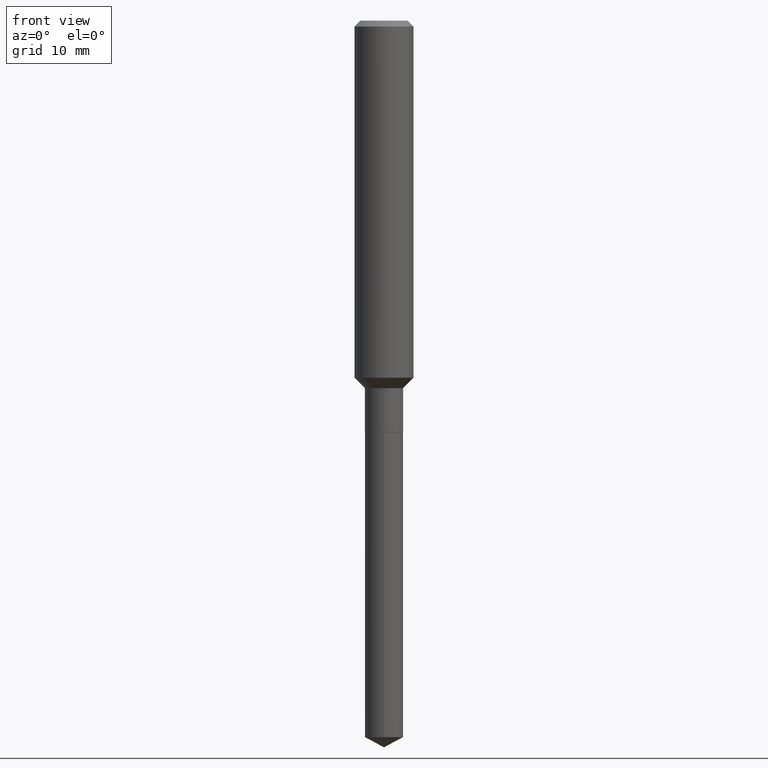
[diagram: clean part render]
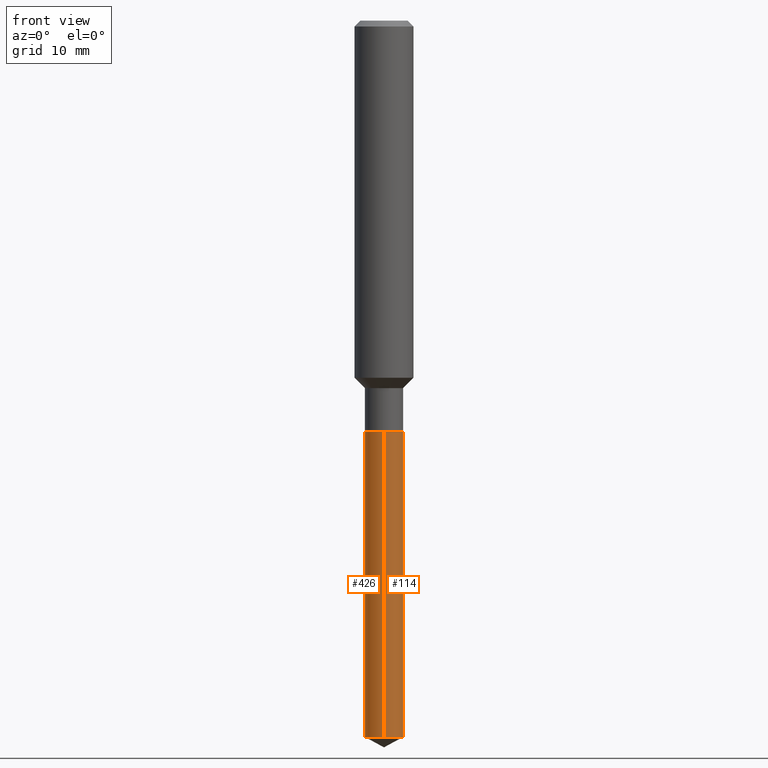
[diagram: same view with one multi-face feature highlighted, each face labeled with its STEP entity id]
A machine part, front view. The highlighted faces form ONE feature: a constant-radius fillet chain: 2 tangent blend faces with common blend radius 1.9495 mm. The faces share edges in the B-rep.
Their STEP definitions:
[1] entity #114 (Cylinder):
#2 = CIRCLE ( 'NONE', #282, 0.07675000000000001266 ) ;
#33 = ORIENTED_EDGE ( 'NONE', *, *, #169, .T. ) ;
#44 = AXIS2_PLACEMENT_3D ( 'NONE', #434, #403, #128 ) ;
#58 = DIRECTION ( 'NONE',  ( -6.982962677686265133E-15, -1.000000000000000000, 0.000000000000000000 ) ) ;
#67 = CARTESIAN_POINT ( 'NONE',  ( 5.453415496959472898E-16, 0.07674999999999423950, -1.649600000000000399 ) ) ;
#78 = DIRECTION ( 'NONE',  ( -2.445461926384076289E-29, 3.491491191109838590E-15, 1.000000000000000000 ) ) ;
#85 = VERTEX_POINT ( 'NONE', #359 ) ;
#97 = DIRECTION ( 'NONE',  ( -2.445461926384076009E-29, 3.491491191109838590E-15, 1.000000000000000000 ) ) ;
#109 = VECTOR ( 'NONE', #78, 39.37007874015748143 ) ;
#113 = CARTESIAN_POINT ( 'NONE',  ( -5.359423855123805922E-16, -0.07675000000000577194, -1.649599999999999733 ) ) ;
#114 = ADVANCED_FACE ( 'NONE', ( #278 ), #127, .T. ) ;
#127 = CYLINDRICAL_SURFACE ( 'NONE', #44, 0.07675000000000001266 ) ;
#128 = DIRECTION ( 'NONE',  ( -6.982962677686265133E-15, -1.000000000000000000, 3.559411066663534686E-15 ) ) ;
#145 = CARTESIAN_POINT ( 'NONE',  ( 4.034045342683001816E-29, -5.759547616555652555E-15, -1.649600000000000177 ) ) ;
#169 = EDGE_CURVE ( 'NONE', #443, #85, #437, .T. ) ;
#176 = LINE ( 'NONE', #488, #447 ) ;
#177 = VERTEX_POINT ( 'NONE', #399 ) ;
#207 = EDGE_LOOP ( 'NONE', ( #33, #400, #325, #407 ) ) ;
#233 = AXIS2_PLACEMENT_3D ( 'NONE', #394, #401, #58 ) ;
#278 = FACE_OUTER_BOUND ( 'NONE', #207, .T. ) ;
#279 = EDGE_CURVE ( 'NONE', #85, #289, #176, .T. ) ;
#282 = AXIS2_PLACEMENT_3D ( 'NONE', #145, #97, #301 ) ;
#289 = VERTEX_POINT ( 'NONE', #67 ) ;
#301 = DIRECTION ( 'NONE',  ( -6.982962677686265133E-15, -1.000000000000000000, 3.559411066663534686E-15 ) ) ;
#307 = LINE ( 'NONE', #113, #109 ) ;
#325 = ORIENTED_EDGE ( 'NONE', *, *, #348, .F. ) ;
#348 = EDGE_CURVE ( 'NONE', #177, #289, #2, .T. ) ;
#359 = CARTESIAN_POINT ( 'NONE',  ( 5.453415496959469940E-16, 0.07674999999998996514, -2.872591301119981733 ) ) ;
#384 = EDGE_CURVE ( 'NONE', #443, #177, #307, .T. ) ;
#394 = CARTESIAN_POINT ( 'NONE',  ( 7.024824005870840308E-29, -1.002961097122002852E-14, -2.872591301119981733 ) ) ;
#399 = CARTESIAN_POINT ( 'NONE',  ( -5.359423855123805922E-16, -0.07675000000000577194, -1.649599999999999733 ) ) ;
#400 = ORIENTED_EDGE ( 'NONE', *, *, #279, .T. ) ;
#401 = DIRECTION ( 'NONE',  ( -2.445461926384076009E-29, 3.491491191109838590E-15, 1.000000000000000000 ) ) ;
#403 = DIRECTION ( 'NONE',  ( -2.445461926384076009E-29, 3.491491191109838590E-15, 1.000000000000000000 ) ) ;
#407 = ORIENTED_EDGE ( 'NONE', *, *, #384, .F. ) ;
#418 = DIRECTION ( 'NONE',  ( -2.445461926384076289E-29, 3.491491191109838590E-15, 1.000000000000000000 ) ) ;
#434 = CARTESIAN_POINT ( 'NONE',  ( 4.034045342683001816E-29, -5.759547616555652555E-15, -1.649600000000000177 ) ) ;
#437 = CIRCLE ( 'NONE', #233, 0.07675000000000001266 ) ;
#443 = VERTEX_POINT ( 'NONE', #463 ) ;
#447 = VECTOR ( 'NONE', #418, 39.37007874015748143 ) ;
#463 = CARTESIAN_POINT ( 'NONE',  ( -5.359423855123507141E-16, -0.07675000000001001854, -2.872591301119981733 ) ) ;
#488 = CARTESIAN_POINT ( 'NONE',  ( 5.453415496959172145E-16, 0.07674999999999423950, -1.649600000000000399 ) ) ;
[2] entity #426 (Cylinder):
#42 = DIRECTION ( 'NONE',  ( -2.445461926384076009E-29, 3.491491191109838590E-15, 1.000000000000000000 ) ) ;
#65 = ORIENTED_EDGE ( 'NONE', *, *, #332, .T. ) ;
#66 = AXIS2_PLACEMENT_3D ( 'NONE', #117, #345, #192 ) ;
#67 = CARTESIAN_POINT ( 'NONE',  ( 5.453415496959472898E-16, 0.07674999999999423950, -1.649600000000000399 ) ) ;
#78 = DIRECTION ( 'NONE',  ( -2.445461926384076289E-29, 3.491491191109838590E-15, 1.000000000000000000 ) ) ;
#83 = CARTESIAN_POINT ( 'NONE',  ( 4.034045342683001816E-29, -5.759547616555652555E-15, -1.649600000000000177 ) ) ;
#85 = VERTEX_POINT ( 'NONE', #359 ) ;
#99 = ORIENTED_EDGE ( 'NONE', *, *, #279, .F. ) ;
#109 = VECTOR ( 'NONE', #78, 39.37007874015748143 ) ;
#113 = CARTESIAN_POINT ( 'NONE',  ( -5.359423855123805922E-16, -0.07675000000000577194, -1.649599999999999733 ) ) ;
#117 = CARTESIAN_POINT ( 'NONE',  ( 4.034045342683001816E-29, -5.759547616555652555E-15, -1.649600000000000177 ) ) ;
#141 = CIRCLE ( 'NONE', #425, 0.07675000000000001266 ) ;
#176 = LINE ( 'NONE', #488, #447 ) ;
#177 = VERTEX_POINT ( 'NONE', #399 ) ;
#192 = DIRECTION ( 'NONE',  ( -6.982962677686265133E-15, -1.000000000000000000, 3.559411066663534686E-15 ) ) ;
#195 = FACE_OUTER_BOUND ( 'NONE', #293, .T. ) ;
#264 = AXIS2_PLACEMENT_3D ( 'NONE', #83, #42, #428 ) ;
#275 = CIRCLE ( 'NONE', #264, 0.07675000000000001266 ) ;
#279 = EDGE_CURVE ( 'NONE', #85, #289, #176, .T. ) ;
#289 = VERTEX_POINT ( 'NONE', #67 ) ;
#293 = EDGE_LOOP ( 'NONE', ( #99, #65, #342, #465 ) ) ;
#307 = LINE ( 'NONE', #113, #109 ) ;
#310 = CYLINDRICAL_SURFACE ( 'NONE', #66, 0.07675000000000001266 ) ;
#324 = DIRECTION ( 'NONE',  ( -6.982962677686265133E-15, -1.000000000000000000, 0.000000000000000000 ) ) ;
#332 = EDGE_CURVE ( 'NONE', #85, #443, #141, .T. ) ;
#342 = ORIENTED_EDGE ( 'NONE', *, *, #384, .T. ) ;
#345 = DIRECTION ( 'NONE',  ( -2.445461926384076009E-29, 3.491491191109838590E-15, 1.000000000000000000 ) ) ;
#359 = CARTESIAN_POINT ( 'NONE',  ( 5.453415496959469940E-16, 0.07674999999998996514, -2.872591301119981733 ) ) ;
#384 = EDGE_CURVE ( 'NONE', #443, #177, #307, .T. ) ;
#399 = CARTESIAN_POINT ( 'NONE',  ( -5.359423855123805922E-16, -0.07675000000000577194, -1.649599999999999733 ) ) ;
#418 = DIRECTION ( 'NONE',  ( -2.445461926384076289E-29, 3.491491191109838590E-15, 1.000000000000000000 ) ) ;
#419 = EDGE_CURVE ( 'NONE', #289, #177, #275, .T. ) ;
#425 = AXIS2_PLACEMENT_3D ( 'NONE', #482, #444, #324 ) ;
#426 = ADVANCED_FACE ( 'NONE', ( #195 ), #310, .T. ) ;
#428 = DIRECTION ( 'NONE',  ( -6.982962677686265133E-15, -1.000000000000000000, 3.559411066663534686E-15 ) ) ;
#443 = VERTEX_POINT ( 'NONE', #463 ) ;
#444 = DIRECTION ( 'NONE',  ( -2.445461926384076009E-29, 3.491491191109838590E-15, 1.000000000000000000 ) ) ;
#447 = VECTOR ( 'NONE', #418, 39.37007874015748143 ) ;
#463 = CARTESIAN_POINT ( 'NONE',  ( -5.359423855123507141E-16, -0.07675000000001001854, -2.872591301119981733 ) ) ;
#465 = ORIENTED_EDGE ( 'NONE', *, *, #419, .F. ) ;
#482 = CARTESIAN_POINT ( 'NONE',  ( 7.024824005870840308E-29, -1.002961097122002852E-14, -2.872591301119981733 ) ) ;
#488 = CARTESIAN_POINT ( 'NONE',  ( 5.453415496959172145E-16, 0.07674999999999423950, -1.649600000000000399 ) ) ;